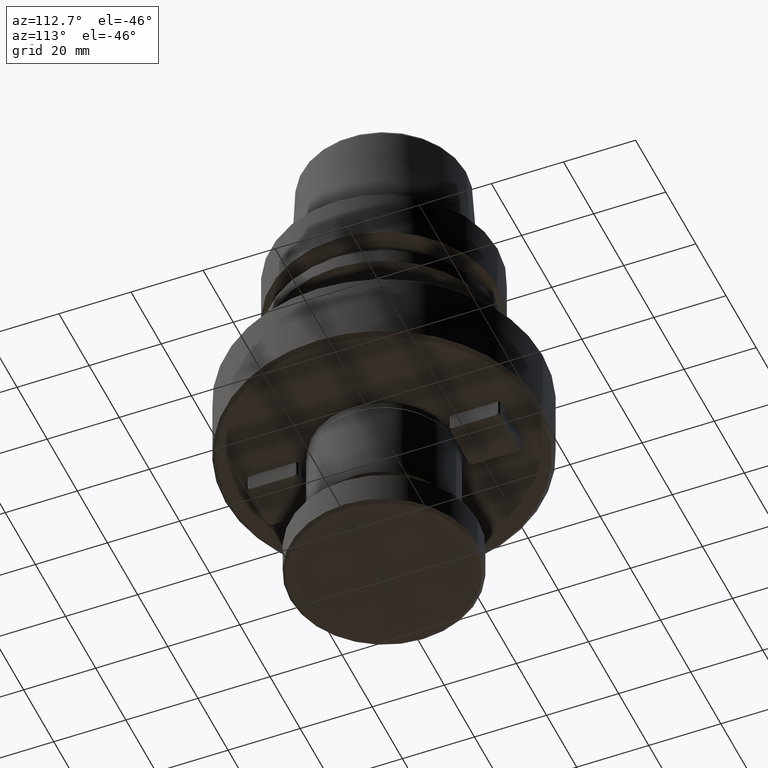
[diagram: clean part render]
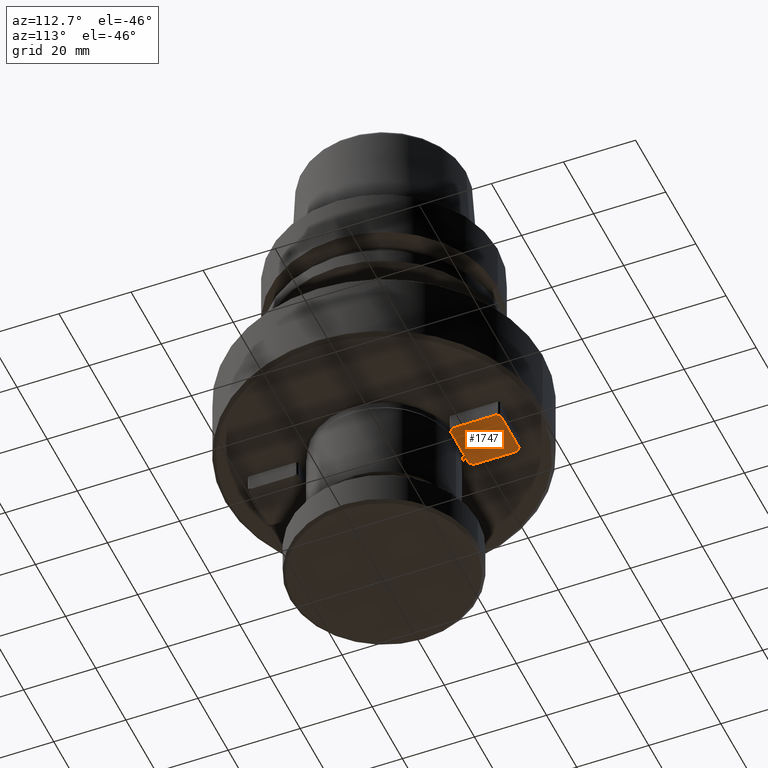
[diagram: same view with one face highlighted and labeled with its STEP entity id]
A machine part, auxiliary view. The second image highlights one B-rep face of the part: STEP entity #1747.
In plain terms, the highlighted planar face has unit normal (0, 0, -1).
Its self-contained STEP definition (entity closure, byte-faithful):
#107 = VECTOR ( 'NONE', #1534, 1000.000000000000100 ) ;
#109 = EDGE_CURVE ( 'NONE', #1919, #2838, #1304, .T. ) ;
#172 = VECTOR ( 'NONE', #2454, 1000.000000000000000 ) ;
#283 = DIRECTION ( 'NONE',  ( 1.971276677246371000E-016, -1.000000000000000000, 0.0000000000000000000 ) ) ;
#306 = CARTESIAN_POINT ( 'NONE',  ( -6.999999999999999100, 34.03431457505070100, -69.75000000000000000 ) ) ;
#350 = DIRECTION ( 'NONE',  ( -0.7071067811865506800, -0.7071067811865443500, 0.0000000000000000000 ) ) ;
#352 = LINE ( 'NONE', #536, #172 ) ;
#369 = ORIENTED_EDGE ( 'NONE', *, *, #3399, .T. ) ;
#493 = LINE ( 'NONE', #2927, #2043 ) ;
#536 = CARTESIAN_POINT ( 'NONE',  ( 6.599999999999998800, 35.00000000000000000, -69.75000000000000000 ) ) ;
#687 = LINE ( 'NONE', #2923, #2785 ) ;
#698 = CARTESIAN_POINT ( 'NONE',  ( 6.034314575050739600, 21.00000000000000000, -69.75000000000000000 ) ) ;
#741 = VERTEX_POINT ( 'NONE', #306 ) ;
#784 = CARTESIAN_POINT ( 'NONE',  ( -7.000000000000004400, 21.96568542494925300, -69.75000000000000000 ) ) ;
#828 = VECTOR ( 'NONE', #3170, 1000.000000000000000 ) ;
#842 = PLANE ( 'NONE',  #2412 ) ;
#848 = LINE ( 'NONE', #934, #107 ) ;
#910 = LINE ( 'NONE', #2622, #828 ) ;
#933 = VECTOR ( 'NONE', #350, 1000.000000000000000 ) ;
#934 = CARTESIAN_POINT ( 'NONE',  ( -6.999999999999998200, 34.03431457505070100, -69.75000000000000000 ) ) ;
#980 = CARTESIAN_POINT ( 'NONE',  ( -6.034314575050756500, 21.00000000000000000, -69.75000000000000000 ) ) ;
#1000 = LINE ( 'NONE', #1171, #933 ) ;
#1047 = FACE_OUTER_BOUND ( 'NONE', #3196, .T. ) ;
#1114 = DIRECTION ( 'NONE',  ( 0.0000000000000000000, 0.0000000000000000000, -1.000000000000000000 ) ) ;
#1133 = LINE ( 'NONE', #1433, #1865 ) ;
#1139 = DIRECTION ( 'NONE',  ( 0.7071067811865474600, -0.7071067811865474600, 0.0000000000000000000 ) ) ;
#1154 = EDGE_CURVE ( 'NONE', #3480, #3071, #493, .T. ) ;
#1171 = CARTESIAN_POINT ( 'NONE',  ( 7.000000000000000900, 21.96568542494925300, -69.75000000000000000 ) ) ;
#1283 = DIRECTION ( 'NONE',  ( 0.7071067811865482400, -0.7071067811865469100, 0.0000000000000000000 ) ) ;
#1304 = LINE ( 'NONE', #2216, #3412 ) ;
#1433 = CARTESIAN_POINT ( 'NONE',  ( 6.034314575050693500, 35.00000000000000000, -69.75000000000000000 ) ) ;
#1534 = DIRECTION ( 'NONE',  ( 0.7071067811865453500, 0.7071067811865497900, 0.0000000000000000000 ) ) ;
#1649 = CARTESIAN_POINT ( 'NONE',  ( -6.034314575050697000, 35.00000000000000000, -69.75000000000000000 ) ) ;
#1730 = EDGE_CURVE ( 'NONE', #2125, #1919, #1133, .T. ) ;
#1747 = ADVANCED_FACE ( 'NONE', ( #1047 ), #842, .T. ) ;
#1813 = CARTESIAN_POINT ( 'NONE',  ( 6.034314575050689900, 35.00000000000000000, -69.75000000000000000 ) ) ;
#1865 = VECTOR ( 'NONE', #1139, 1000.000000000000100 ) ;
#1871 = ORIENTED_EDGE ( 'NONE', *, *, #1154, .F. ) ;
#1908 = ORIENTED_EDGE ( 'NONE', *, *, #2839, .T. ) ;
#1919 = VERTEX_POINT ( 'NONE', #2260 ) ;
#2043 = VECTOR ( 'NONE', #1283, 999.9999999999998900 ) ;
#2117 = ORIENTED_EDGE ( 'NONE', *, *, #109, .T. ) ;
#2125 = VERTEX_POINT ( 'NONE', #1813 ) ;
#2216 = CARTESIAN_POINT ( 'NONE',  ( 6.999999999999998200, 34.60000000000001600, -69.75000000000000000 ) ) ;
#2260 = CARTESIAN_POINT ( 'NONE',  ( 6.999999999999995600, 34.03431457505070100, -69.75000000000000000 ) ) ;
#2285 = EDGE_CURVE ( 'NONE', #2679, #2125, #352, .T. ) ;
#2317 = ORIENTED_EDGE ( 'NONE', *, *, #3475, .T. ) ;
#2324 = EDGE_CURVE ( 'NONE', #3026, #3071, #910, .T. ) ;
#2412 = AXIS2_PLACEMENT_3D ( 'NONE', #2763, #1114, #3040 ) ;
#2454 = DIRECTION ( 'NONE',  ( 1.000000000000000000, 0.0000000000000000000, 0.0000000000000000000 ) ) ;
#2610 = ORIENTED_EDGE ( 'NONE', *, *, #2285, .T. ) ;
#2622 = CARTESIAN_POINT ( 'NONE',  ( 6.599999999999999600, 21.00000000000000000, -69.75000000000000000 ) ) ;
#2628 = ORIENTED_EDGE ( 'NONE', *, *, #1730, .T. ) ;
#2679 = VERTEX_POINT ( 'NONE', #1649 ) ;
#2763 = CARTESIAN_POINT ( 'NONE',  ( 0.0000000000000000000, -8.887193785479059500E-016, -69.75000000000000000 ) ) ;
#2785 = VECTOR ( 'NONE', #3536, 1000.000000000000000 ) ;
#2838 = VERTEX_POINT ( 'NONE', #3379 ) ;
#2839 = EDGE_CURVE ( 'NONE', #2838, #3026, #1000, .T. ) ;
#2923 = CARTESIAN_POINT ( 'NONE',  ( -6.999999999999998200, 34.60000000000001600, -69.75000000000000000 ) ) ;
#2927 = CARTESIAN_POINT ( 'NONE',  ( -7.000000000000009800, 21.96568542494925700, -69.75000000000000000 ) ) ;
#3026 = VERTEX_POINT ( 'NONE', #698 ) ;
#3040 = DIRECTION ( 'NONE',  ( -1.000000000000000000, 0.0000000000000000000, -0.0000000000000000000 ) ) ;
#3071 = VERTEX_POINT ( 'NONE', #980 ) ;
#3170 = DIRECTION ( 'NONE',  ( -1.000000000000000000, 0.0000000000000000000, -0.0000000000000000000 ) ) ;
#3196 = EDGE_LOOP ( 'NONE', ( #2117, #1908, #3553, #1871, #2317, #369, #2610, #2628 ) ) ;
#3379 = CARTESIAN_POINT ( 'NONE',  ( 7.000000000000000000, 21.96568542494925300, -69.75000000000000000 ) ) ;
#3399 = EDGE_CURVE ( 'NONE', #741, #2679, #848, .T. ) ;
#3412 = VECTOR ( 'NONE', #283, 1000.000000000000000 ) ;
#3475 = EDGE_CURVE ( 'NONE', #3480, #741, #687, .T. ) ;
#3480 = VERTEX_POINT ( 'NONE', #784 ) ;
#3536 = DIRECTION ( 'NONE',  ( 2.628368902995161500E-016, 1.000000000000000000, 0.0000000000000000000 ) ) ;
#3553 = ORIENTED_EDGE ( 'NONE', *, *, #2324, .T. ) ;